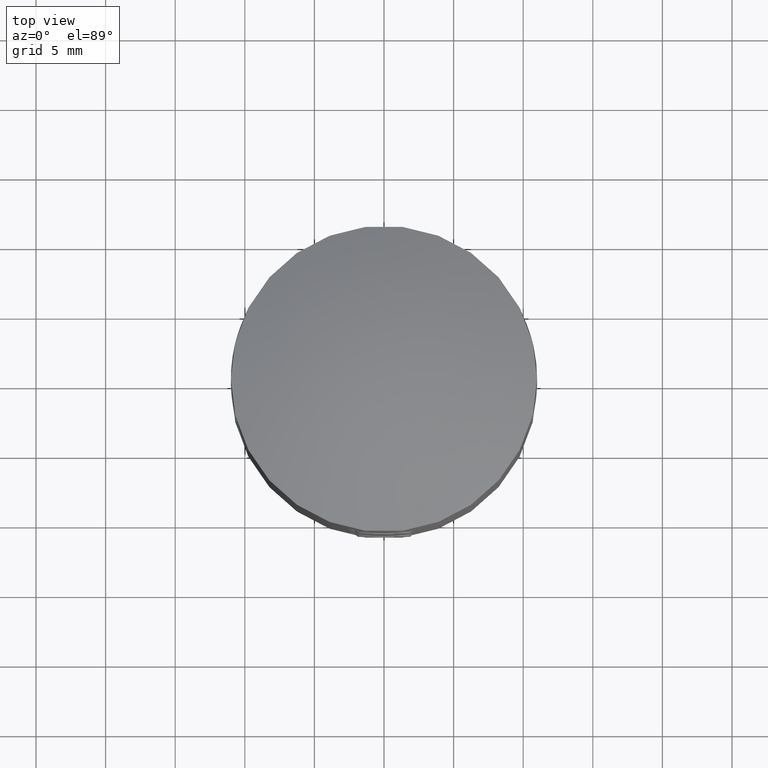
[diagram: clean part render]
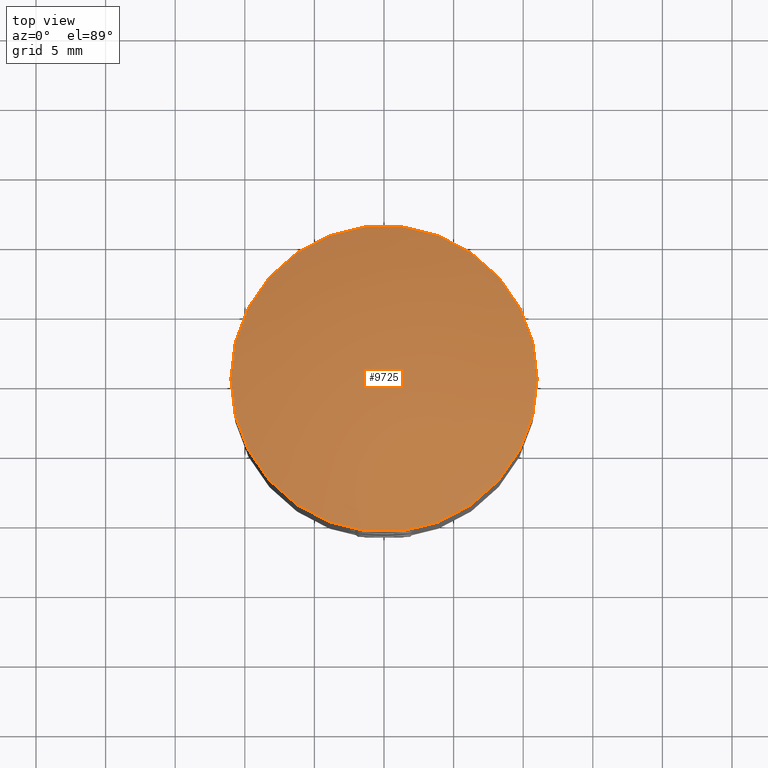
[diagram: same view with one face highlighted and labeled with its STEP entity id]
A machine part, top view. The second image highlights one B-rep face of the part: STEP entity #9725.
In plain terms, the highlighted spherical surface has radius 28 mm.
Its self-contained STEP definition (entity closure, byte-faithful):
#483 = EDGE_LOOP ( 'NONE', ( #22300 ) ) ;
#1230 = AXIS2_PLACEMENT_3D ( 'NONE', #9949, #21920, #11567 ) ;
#2307 = FACE_OUTER_BOUND ( 'NONE', #483, .T. ) ;
#4132 = CIRCLE ( 'NONE', #20666, 10.99999999999999600 ) ;
#4406 = DIRECTION ( 'NONE',  ( -0.0000000000000000000, -0.0000000000000000000, 1.000000000000000000 ) ) ;
#7741 = DIRECTION ( 'NONE',  ( 1.000000000000000000, 0.0000000000000000000, 0.0000000000000000000 ) ) ;
#9725 = ADVANCED_FACE ( 'NONE', ( #2307 ), #15583, .T. ) ;
#9949 = CARTESIAN_POINT ( 'NONE',  ( 0.0000000000000000000, 0.0000000000000000000, -2.000000000000008900 ) ) ;
#11333 = CARTESIAN_POINT ( 'NONE',  ( 10.99999999999999600, 0.0000000000000000000, 23.74878637916747000 ) ) ;
#11567 = DIRECTION ( 'NONE',  ( 0.0000000000000000000, 1.000000000000000000, 0.0000000000000000000 ) ) ;
#13036 = EDGE_CURVE ( 'NONE', #17672, #17672, #4132, .T. ) ;
#13175 = CARTESIAN_POINT ( 'NONE',  ( 0.0000000000000000000, 0.0000000000000000000, 23.74878637916747000 ) ) ;
#15583 = SPHERICAL_SURFACE ( 'NONE', #1230, 28.00000000000000400 ) ;
#17672 = VERTEX_POINT ( 'NONE', #11333 ) ;
#20666 = AXIS2_PLACEMENT_3D ( 'NONE', #13175, #4406, #7741 ) ;
#21920 = DIRECTION ( 'NONE',  ( -1.000000000000000000, 0.0000000000000000000, 0.0000000000000000000 ) ) ;
#22300 = ORIENTED_EDGE ( 'NONE', *, *, #13036, .T. ) ;